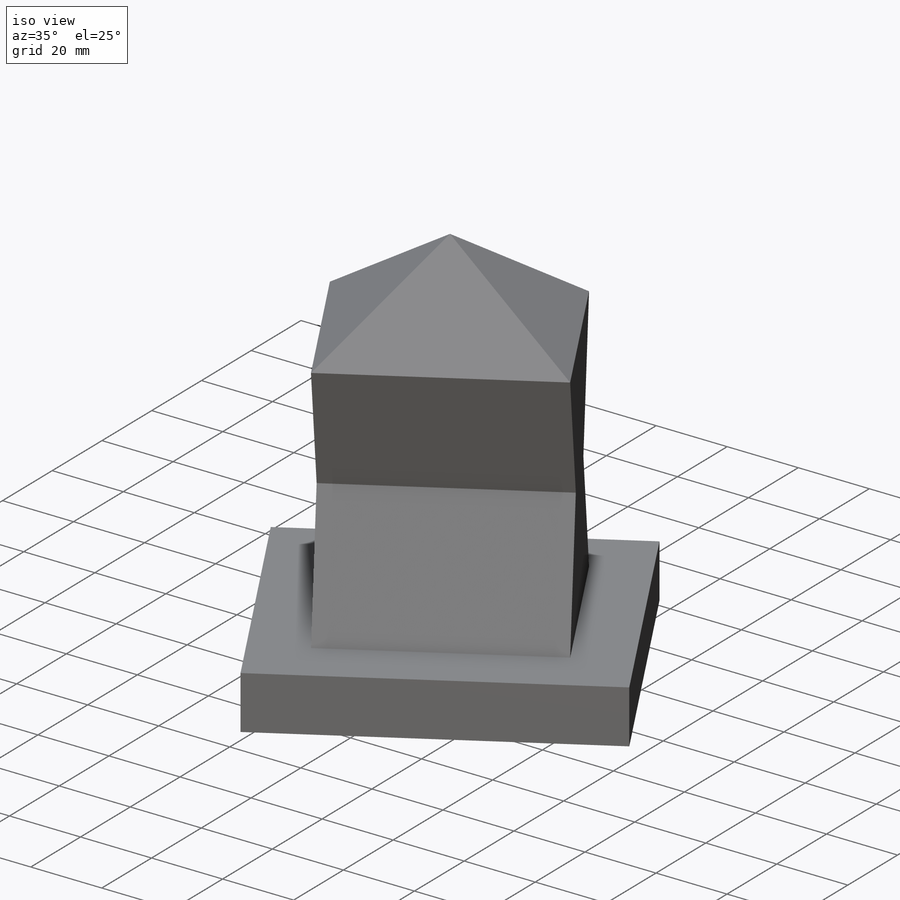
[diagram: iso view]
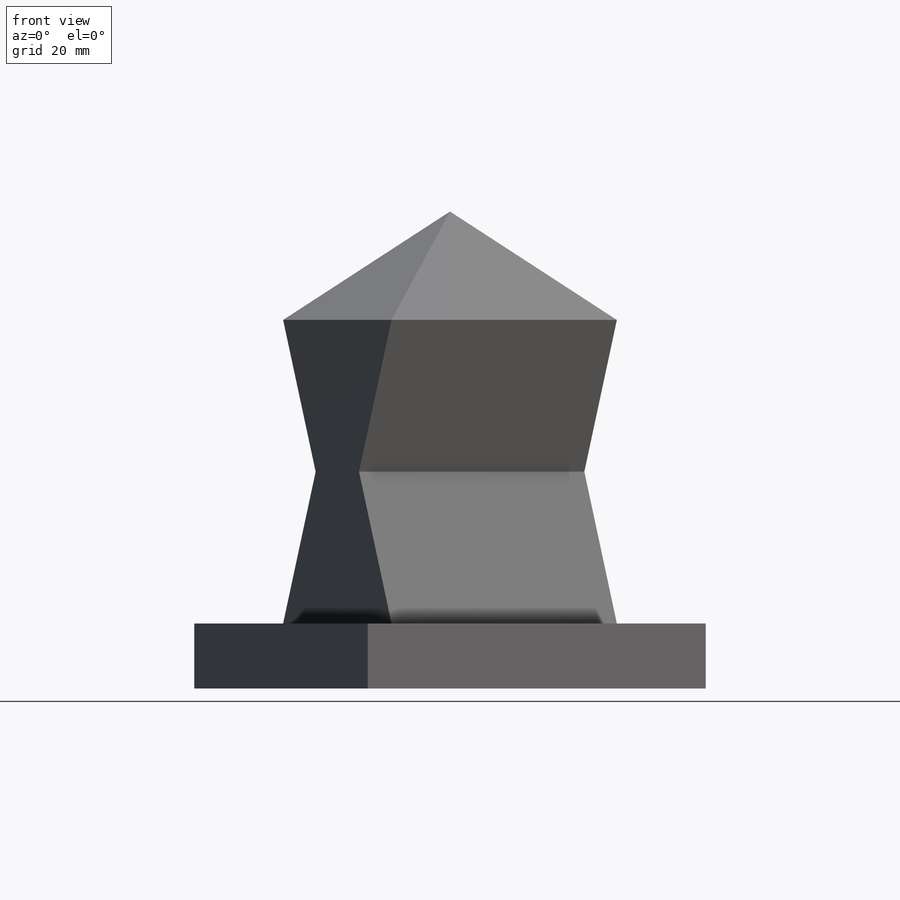
[diagram: front view]
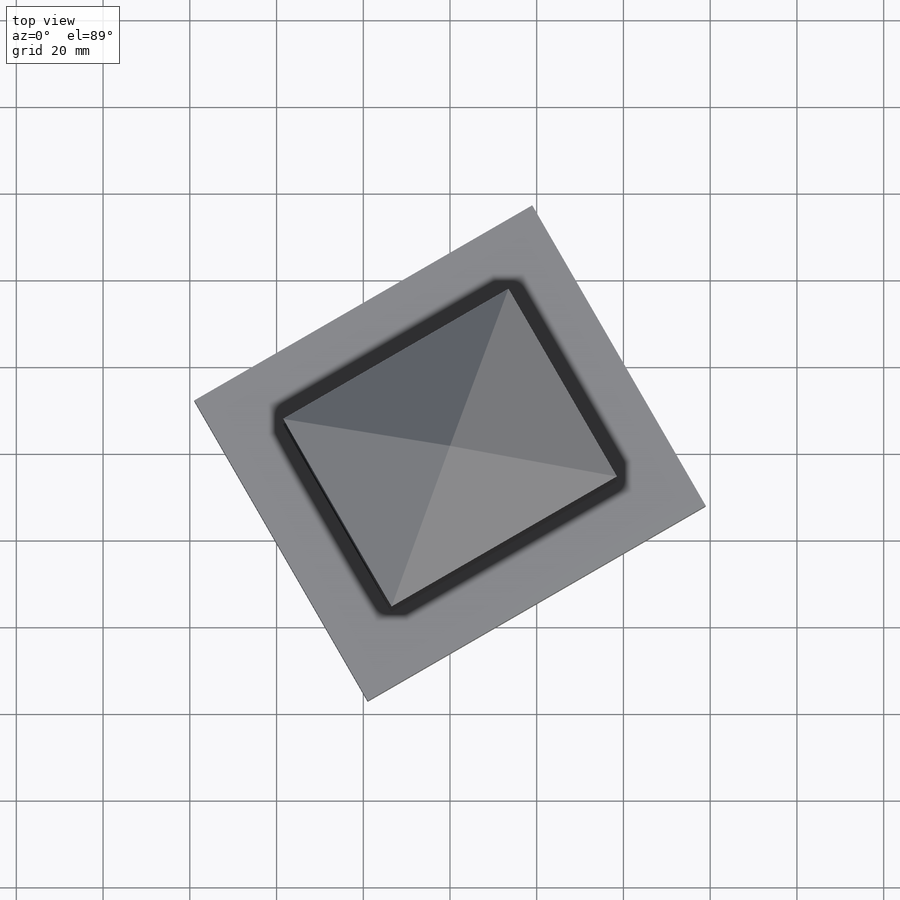
[diagram: top view]
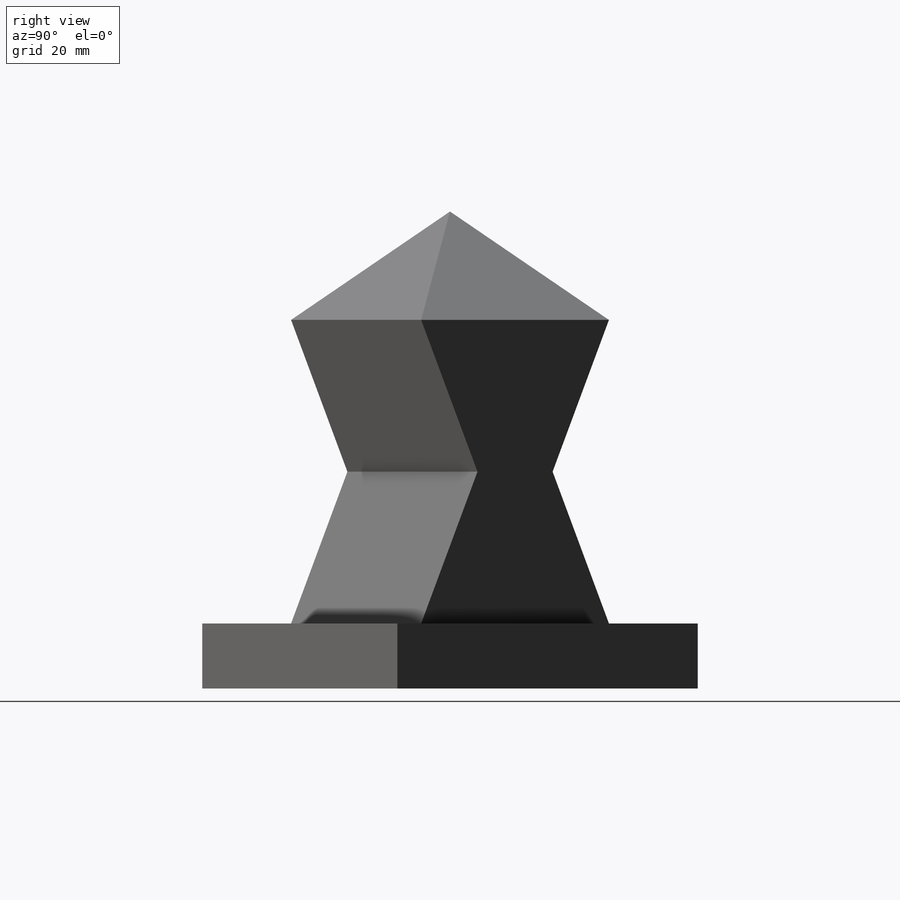
[diagram: right view]
SOLIDWORKS PART (.sldprt)
format: sldprt  version: not decoded by parser v0  size: 264,704 bytes
history: native  units: mm
features: sketch x5, extrude x2, material x1, cut_extrude x1 (+14 scaffold rows collapsed)
feature tree (23):
  scaffold x14  (default folders/planes/origin — collapsed)
  material  "Material <not specified>"
  sketch  "Sketch1"  dims[c1.D1=~27.872566mm c2.D1=30.0deg c2.D2=80.0mm c2.D3=90.0mm c2.D4=~57.141016mm c2.D5=~18.971143mm]
  extrude  "Extrude1"  Depth=15mm
  sketch  "Sketch2"  dims[D1=15.0mm D2=15.0mm D3=15.0mm D4=15.0mm]
  extrude  "Extrude2"  Depth=70mm
  sketch  "Sketch3"  dims[D1=20.0mm]
  cut_extrude  "Cut-Extrude1"  Depth=60mm
  sketch  "Sketch4"
  sketch  "Sketch5"  dims[D1=25.0mm]
decode coverage: 7 of 8 modeling features carry decoded parameters
note: ~ marks probable driven/reference dimensions
note: suppression state not decoded; provenance and decode notes live in map.json
